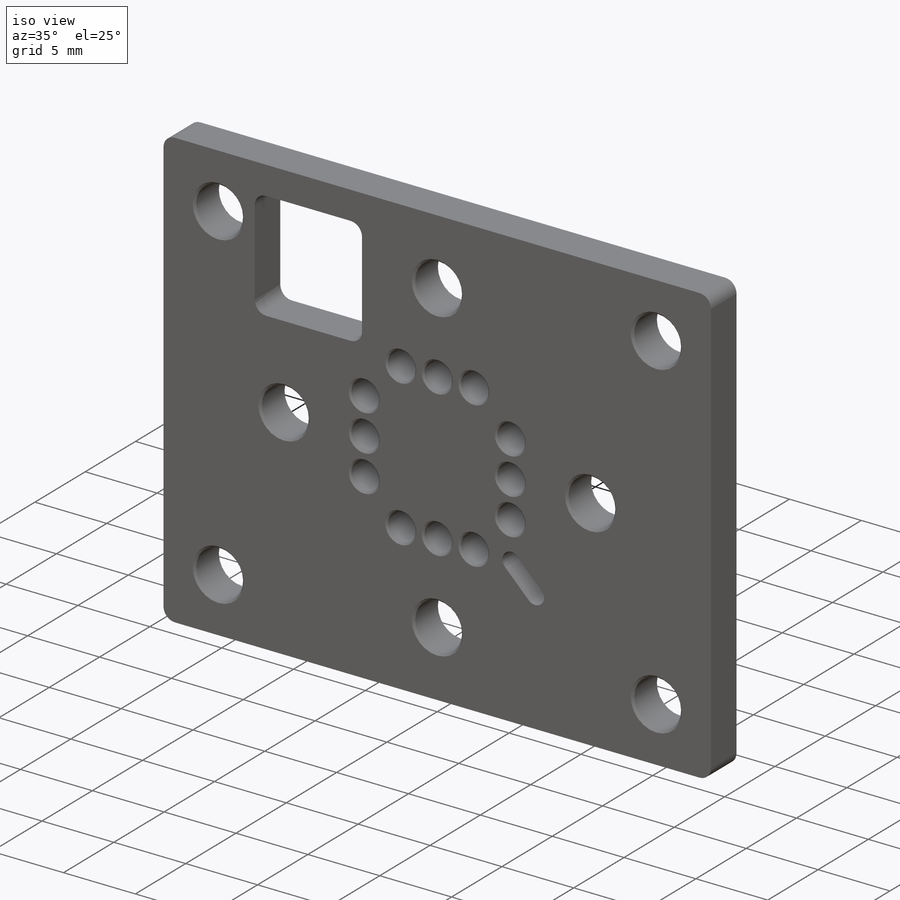
[diagram: iso view]
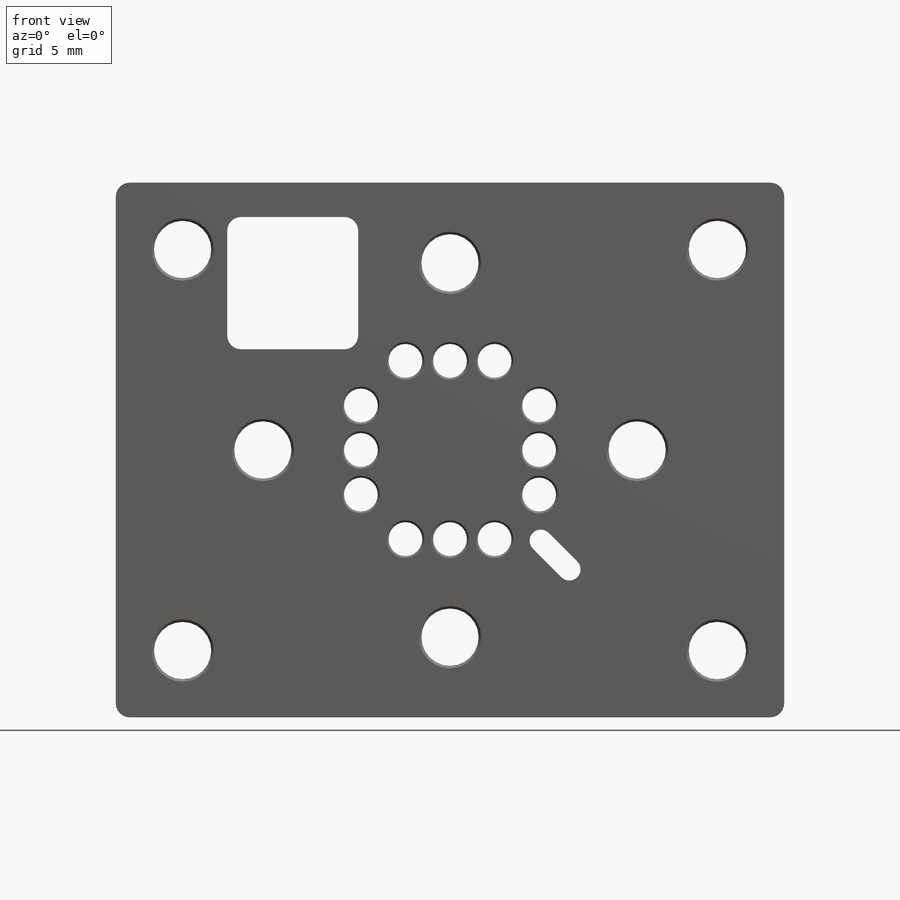
[diagram: front view]
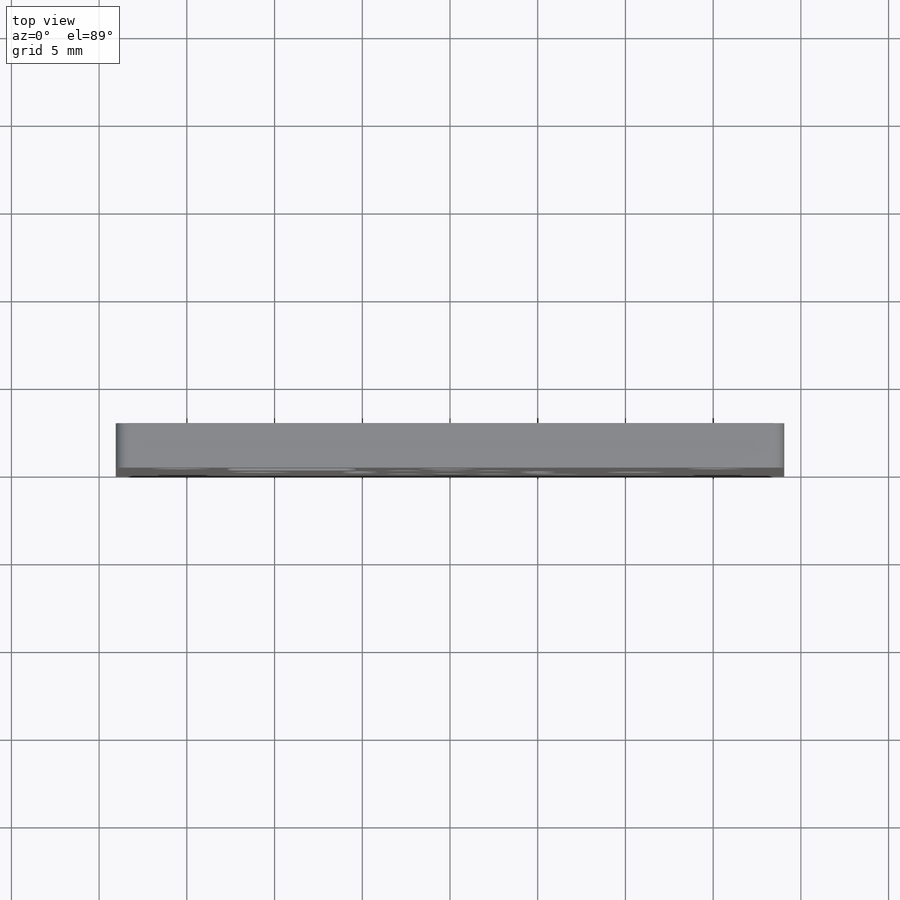
[diagram: top view]
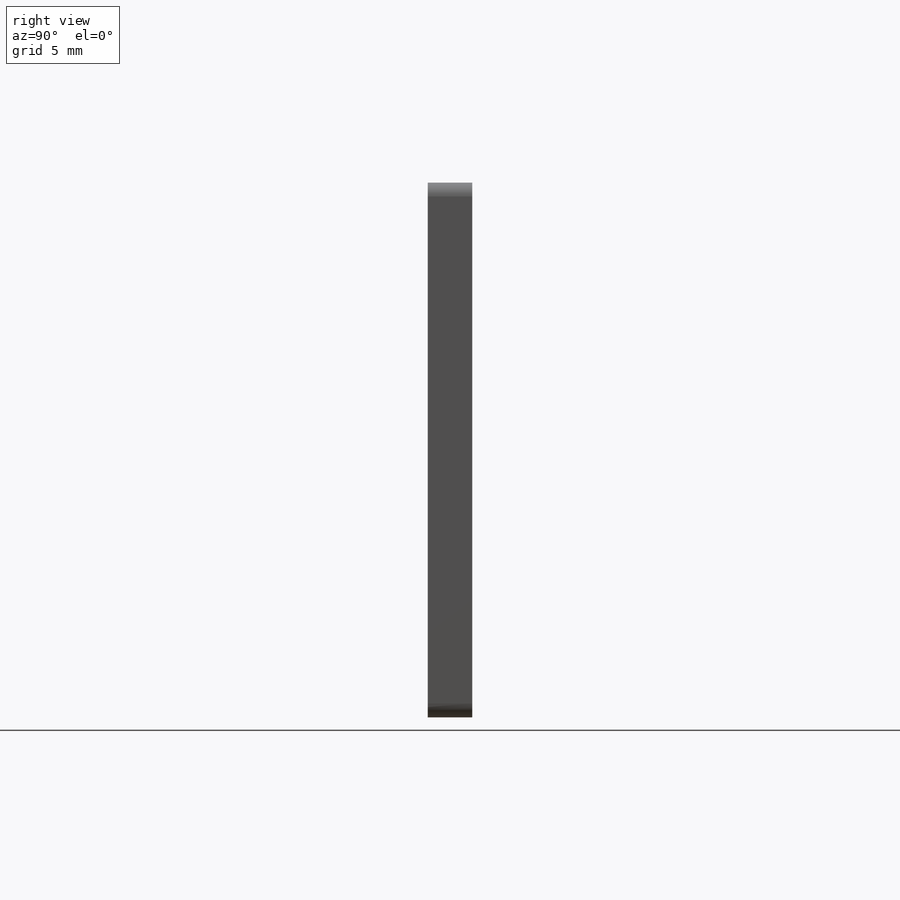
[diagram: right view]
SOLIDWORKS PART (.sldprt)
format: sldprt  version: not decoded by parser v0  size: 416,768 bytes
history: native  units: mm
features: sketch x9, hole x3, cut_extrude x2, material x1, extrude x1, pattern_circular x1, fillet x1 (+16 scaffold rows collapsed)
feature tree (34):
  scaffold x16  (default folders/planes/origin — collapsed)
  material  "CERAMIC"
  sketch  "Sketch1"  dims[D1=38.1mm D2=30.48mm]
  extrude  "Boss-Extrude1"  Depth=2.54mm
  hole  "#48 (0.076) Diameter Hole1"  Diameter=1.9304mm Depth=2.54mm
  sketch  "Sketch3"  dims[D1=2.54mm D2=5.08mm]
  sketch  "Sketch2"  dims[hole-wizard template sketch: 46 standard entries collapsed; hole parameters kept: c15.Thru Hole Dia.=1.9304mm c15.Thru Hole Depth=2.54mm c15.Near C'Sink Dia.=2.159mm c15.D4=~3.666174mm c15.Near C'Sink Angle=90.0deg c15.Far C'Sink Dia.=2.159mm c15.D6=~9.919017mm c15.Far C'Sink Angle=90.0deg]
  hole  "#4 Clearance Hole4"  Diameter=3.2639mm Depth=2.54mm
  sketch  "Sketch5"  dims[c1.D1=10.668mm c1.D2=12.7mm c1.D3=12.7mm c2.D2=12.7mm c2.D4=~21.615579mm c3.D4=45.0deg c3.D2=19.05mm c3.D3=19.05mm]
  sketch  "Sketch4"  dims[hole-wizard template sketch: 46 standard entries collapsed; hole parameters kept: c15.Thru Hole Dia.=3.2639mm c15.Thru Hole Depth=2.54mm c15.Near C'Sink Dia.=3.556mm c15.D4=~3.666174mm c15.Near C'Sink Angle=90.0deg c15.Far C'Sink Dia.=3.556mm c15.D6=~9.919017mm c15.Far C'Sink Angle=90.0deg]
  pattern_circular  "CirPattern1"  Count=4 Angle=90deg
  hole  "#4 Clearance Hole3"  Diameter=3.2639mm Depth=2.54mm
  sketch  "Sketch9"  dims[c1.D1=13.97mm c1.D2=15.24mm c1.D3=11.43mm c2.D1=3.81mm c2.D4=15.24mm]
  sketch  "Sketch8"  dims[hole-wizard template sketch: 46 standard entries collapsed; hole parameters kept: c15.Thru Hole Dia.=3.2639mm c15.Thru Hole Depth=2.54mm c15.Near C'Sink Dia.=3.556mm c15.D4=~3.666174mm c15.Near C'Sink Angle=90.0deg c15.Far C'Sink Dia.=3.556mm c15.D6=~9.919017mm c15.Far C'Sink Angle=90.0deg]
  sketch  "Sketch10"  dims[D1=1.27mm]
  cut_extrude  "Cut-Extrude1"  [1 undecoded]
  fillet  "Fillet1"  Radius=0.79375mm
  sketch  "Sketch11"  dims[c1.D2=0.635mm c1.D1=~2.222764mm c2.D1=45.0deg]
  cut_extrude  "Cut-Extrude2"  [1 undecoded]
decode coverage: 15 of 17 modeling features carry decoded parameters
note: ~ marks probable driven/reference dimensions
note: 2 parameter values undecoded
note: suppression state not decoded; provenance and decode notes live in map.json
